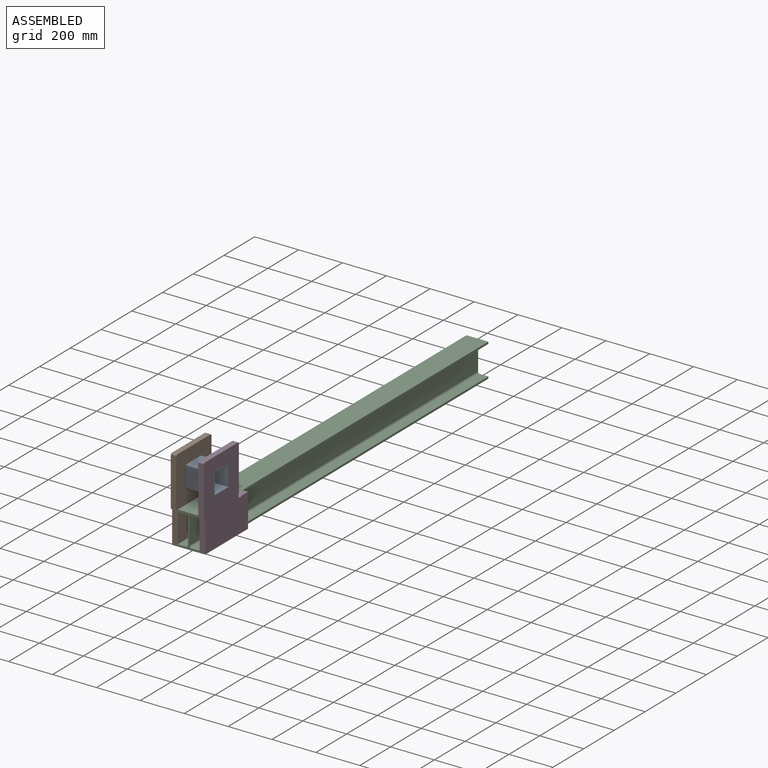
[diagram: assembled view]
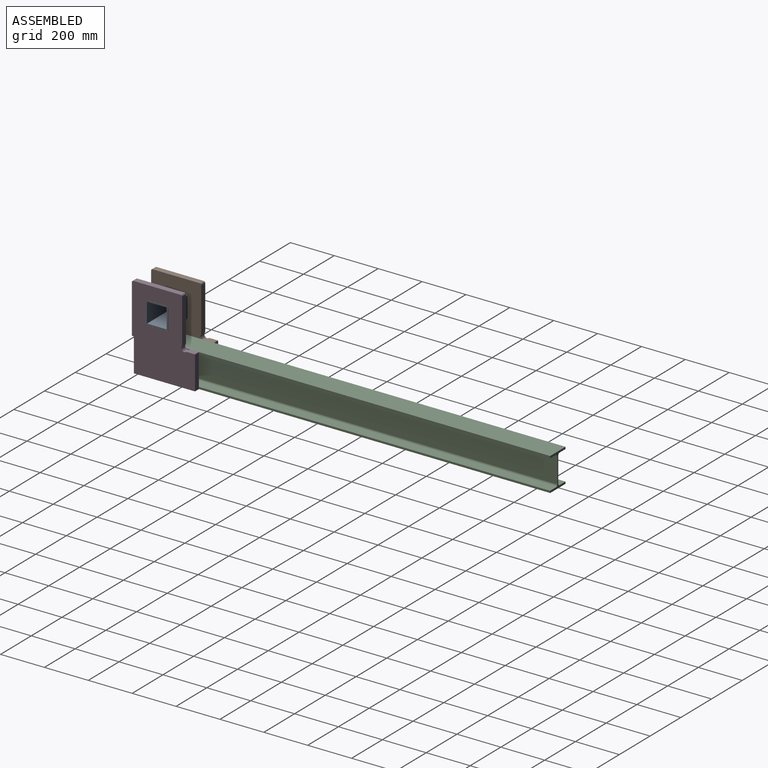
[diagram: assembled view, second angle]
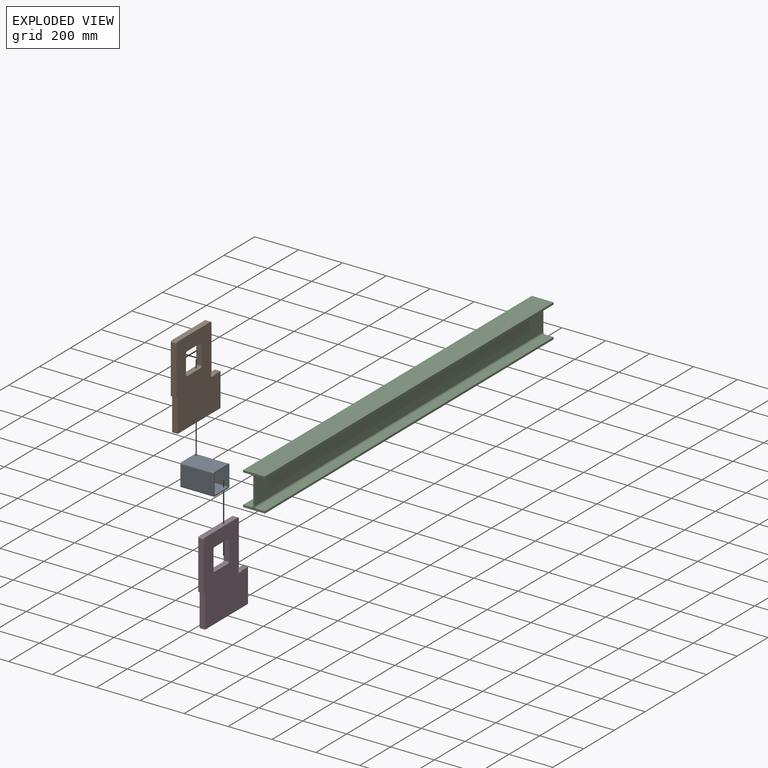
[diagram: exploded view]
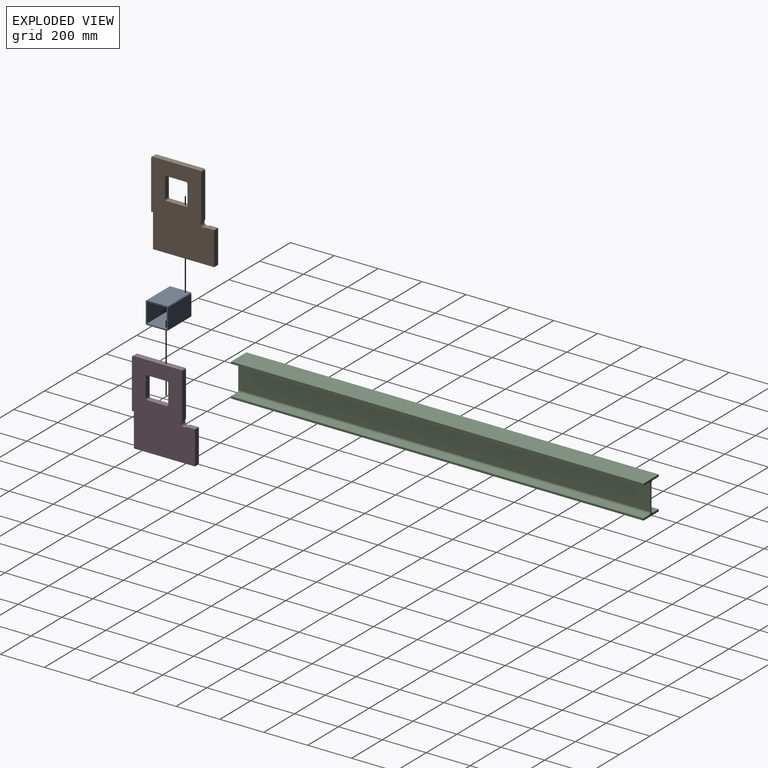
[diagram: exploded view, second angle]
ASSEMBLY  parts=4 mates=3
PART A: 14 faces, bbox 101.6x152.4x101.6 mm
  f0: plane 152.4x89.66mm, normal (0,0,-1), area 13664.5mm2, adj f8,f9,f10,f13
  f1: plane 152.4x89.66mm, normal (1,0,0), area 13664.5mm2, adj f8,f9,f10,f11
  f2: plane 152.4x89.66mm, normal (0,0,1), area 13664.5mm2, adj f8,f9,f11,f12
  f3: plane 152.4x89.71mm, normal (0,0,-1), area 13672.2mm2, adj f4,f6,f8,f9
  f4: plane 152.4x89.71mm, normal (-1,0,0), area 13672.2mm2, adj f3,f5,f8,f9
  f5: plane 152.4x89.71mm, normal (0,0,1), area 13672.2mm2, adj f4,f6,f8,f9
  f6: plane 152.4x89.71mm, normal (1,0,0), area 13672.2mm2, adj f3,f5,f8,f9
  f7: plane 152.4x89.66mm, normal (-1,0,0), area 13664.5mm2, adj f8,f9,f12,f13
  f8: plane 101.6x101.6mm, normal (0,1,0), area 2243.6mm2, adj f0,f1,f2,f3,f4,f5,f6,f7
  f9: plane 101.6x101.6mm, normal (0,-1,0), area 2243.6mm2, adj f0,f1,f2,f3,f4,f5,f6,f7
  f10: cylinder r=5.97mm len=152.4mm, axis (0,1,0), area 1428.9mm2, adj f0,f1,f8,f9
  f11: cylinder r=5.97mm len=152.4mm, axis (0,-1,0), area 1428.9mm2, adj f1,f2,f8,f9
  f12: cylinder r=5.97mm len=152.4mm, axis (0,1,0), area 1428.9mm2, adj f2,f7,f8,f9
  f13: cylinder r=5.97mm len=152.4mm, axis (0,-1,0), area 1428.9mm2, adj f0,f7,f8,f9
PART B: 23 faces, bbox 380.2x25.4x287.3 mm
  f0: cylinder r=6.73mm len=25.4mm, axis (0,1,0), area 268.6mm2, adj f1,f20,f21,f22
  f1: plane 88.9x25.4mm, normal (-1,0,0), area 2258.1mm2, adj f0,f2,f21,f22
  f2: cylinder r=6.73mm len=25.4mm, axis (0,1,0), area 268.6mm2, adj f1,f3,f21,f22
  f3: plane 88.9x25.4mm, normal (0,0,1), area 2258.1mm2, adj f2,f4,f21,f22
  f4: cylinder r=6.73mm len=25.4mm, axis (0,1,0), area 268.6mm2, adj f3,f5,f21,f22
  f5: plane 88.9x25.4mm, normal (1,0,0), area 2258.1mm2, adj f4,f6,f21,f22
  f6: cylinder r=6.73mm len=25.4mm, axis (0,1,0), area 268.6mm2, adj f5,f20,f21,f22
  f7: plane 25.4x8.74mm, normal (-1,0,0), area 221.9mm2, adj f8,f19,f21,f22
  f8: plane 152.4x25.4mm, normal (0,0,1), area 3871mm2, adj f7,f9,f21,f22
  f9: plane 278.59x25.4mm, normal (-1,0,0), area 7076.1mm2, adj f8,f10,f21,f22
  f10: plane 152.4x25.4mm, normal (0,0,-1), area 3871mm2, adj f9,f11,f21,f22
  f11: plane 38.31x25.4mm, normal (1,0,0), area 973.1mm2, adj f10,f12,f21,f22
  f12: cylinder r=6.73mm len=25.4mm, axis (0,1,0), area 107.6mm2, adj f11,f13,f21,f22
  f13: cylinder r=12.7mm len=25.4mm, axis (0,1,0), area 912.6mm2, adj f12,f14,f21,f22
  f14: cylinder r=6.73mm len=25.4mm, axis (0,1,0), area 107.6mm2, adj f13,f15,f21,f22
  f15: plane 200.69x25.4mm, normal (0,0,-1), area 5097.6mm2, adj f14,f16,f21,f22
  f16: cylinder r=6.73mm len=25.4mm, axis (0,1,0), area 268.6mm2, adj f15,f17,f21,f22
  f17: plane 215.14x25.4mm, normal (1,0,0), area 5464.5mm2, adj f16,f18,f21,f22
  f18: cylinder r=6.73mm len=25.4mm, axis (0,1,0), area 268.6mm2, adj f17,f19,f21,f22
  f19: plane 221.11x25.4mm, normal (0,0,1), area 5616.1mm2, adj f7,f18,f21,f22
  f20: plane 88.9x25.4mm, normal (0,0,-1), area 2258.1mm2, adj f0,f6,f21,f22
  f21: plane 380.24x287.33mm, normal (0,-1,0), area 83988.6mm2, adj f0,f1,f2,f3,f4,f5,f6,f7
  f22: plane 380.24x287.33mm, normal (0,1,0), area 83988.6mm2, adj f0,f1,f2,f3,f4,f5,f6,f7
PART C: 18 faces, bbox 99.7x1879.6x152.4 mm
  f0: plane 1879.6x37.76mm, normal (0,0,1), area 70968.2mm2, adj f1,f15,f16,f17
  f1: cylinder r=9.14mm len=1879.6mm, axis (0,-1,0), area 26997.4mm2, adj f0,f2,f16,f17
  f2: plane 1879.6x115.88mm, normal (1,0,0), area 217798.3mm2, adj f1,f3,f16,f17
  f3: cylinder r=9.14mm len=1879.6mm, axis (0,-1,0), area 26997.4mm2, adj f2,f4,f16,f17
  f4: plane 1879.6x37.76mm, normal (0,0,-1), area 70968.2mm2, adj f3,f5,f16,f17
  f5: plane 1879.6x9.12mm, normal (1,0,0), area 17139.3mm2, adj f4,f6,f16,f17
  f6: plane 1879.6x99.7mm, normal (0,0,1), area 187386.7mm2, adj f5,f7,f16,f17
  f7: plane 1879.6x9.12mm, normal (-1,0,0), area 17139.3mm2, adj f6,f8,f16,f17
  f8: plane 1879.6x37.76mm, normal (0,0,-1), area 70968.2mm2, adj f7,f9,f16,f17
  f9: cylinder r=9.14mm len=1879.6mm, axis (0,-1,0), area 26997.4mm2, adj f8,f10,f16,f17
  f10: plane 1879.6x115.88mm, normal (-1,0,0), area 217798.3mm2, adj f9,f11,f16,f17
  f11: cylinder r=9.14mm len=1879.6mm, axis (0,-1,0), area 26997.4mm2, adj f10,f12,f16,f17
  f12: plane 1879.6x37.76mm, normal (0,0,1), area 70968.2mm2, adj f11,f13,f16,f17
  f13: plane 1879.6x9.12mm, normal (-1,0,0), area 17139.3mm2, adj f12,f14,f16,f17
  f14: plane 1879.6x99.7mm, normal (0,0,-1), area 187386.7mm2, adj f13,f15,f16,f17
  f15: plane 1879.6x9.12mm, normal (1,0,0), area 17139.3mm2, adj f0,f14,f16,f17
  f16: plane 152.4x99.7mm, normal (0,1,0), area 2680.5mm2, adj f0,f1,f2,f3,f4,f5,f6,f7
  f17: plane 152.4x99.7mm, normal (0,-1,0), area 2680.5mm2, adj f0,f1,f2,f3,f4,f5,f6,f7
PART D: same geometry as B
PLACE A rot(axis=(0,0,-1),90deg) t=(-76.2,105.56,259.97)mm
PLACE B rot(axis=(0.58,-0.58,0.58),120deg) t=(-62.55,29.47,471.48)mm
PLACE C t=(0,0,-76.2)mm fixed
PLACE D rot(axis=(0.58,-0.58,0.58),120deg) t=(62.55,29.47,471.48)mm
MATE fastened B.f21 <-> C.f13  axis (1,0,0) through (-49.85,0,-152.4)mm
MATE fastened A.f2 <-> B.f1  axis (0,0,1) through (0,105.56,164.72)mm
MATE fastened D.f22 <-> C.f15  axis (-1,0,0) through (49.85,0,-152.4)mm
